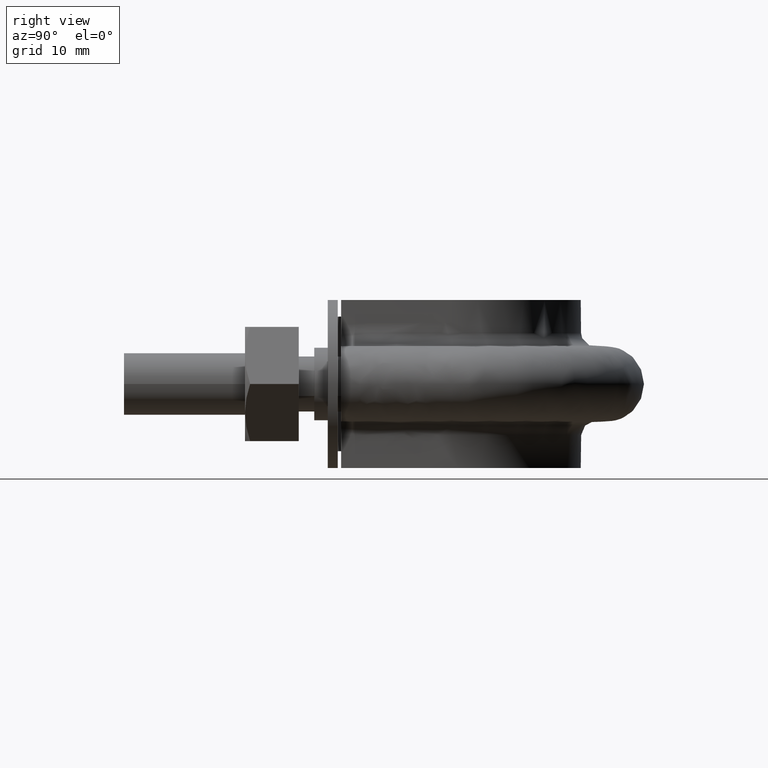
[diagram: clean part render]
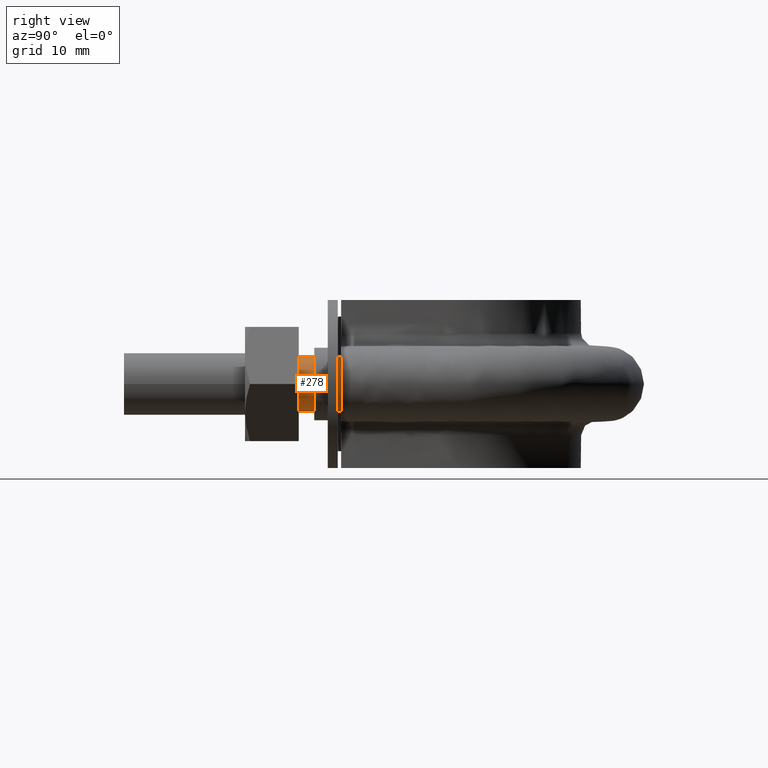
[diagram: same view with one face highlighted and labeled with its STEP entity id]
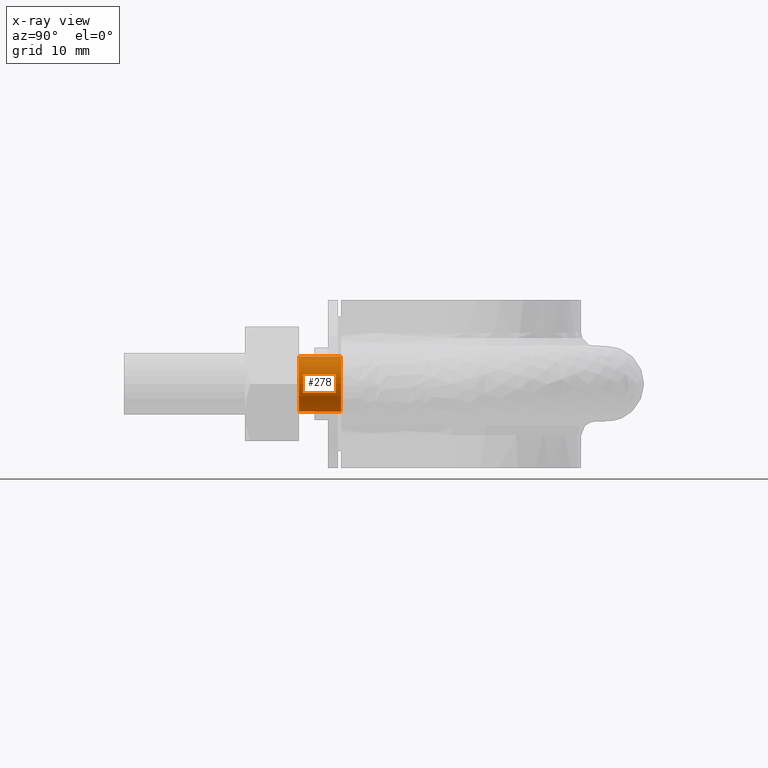
[diagram: x-ray of the same camera — body ghosted, the highlighted face saturated]
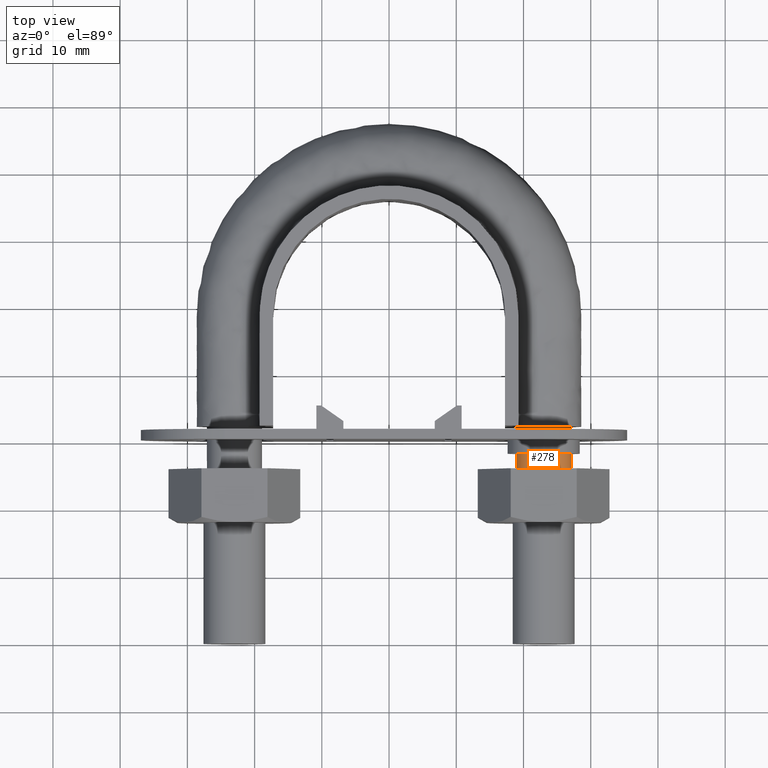
[diagram: same view with one face highlighted and labeled with its STEP entity id]
A machine part, right view. The second image highlights one B-rep face of the part: STEP entity #278.
The next image is the same camera in x-ray: the body ghosted, the highlighted face saturated — about 0% of this face is hidden behind the body in this view.
A second angle (top view) of the same face is appended — the face is thin or edge-on in the first view.
In plain terms, the highlighted cylindrical surface (bore or boss wall) has radius 4.1 mm, axis along (-0, -1, -0).
Its self-contained STEP definition (entity closure, byte-faithful):
#278 = ADVANCED_FACE( '', ( #406, #407 ), #408, .T. );
#406 = FACE_OUTER_BOUND( '', #1484, .T. );
#407 = FACE_OUTER_BOUND( '', #1485, .T. );
#408 = CYLINDRICAL_SURFACE( '', #1486, 4.10000000000000 );
#1484 = EDGE_LOOP( '', ( #1803 ) );
#1485 = EDGE_LOOP( '', ( #1804, #1805, #1806, #1807, #1808, #1809, #1810 ) );
#1486 = AXIS2_PLACEMENT_3D( '', #1811, #1812, #1813 );
#1803 = ORIENTED_EDGE( '', *, *, #2554, .T. );
#1804 = ORIENTED_EDGE( '', *, *, #2555, .T. );
#1805 = ORIENTED_EDGE( '', *, *, #2553, .T. );
#1806 = ORIENTED_EDGE( '', *, *, #2556, .T. );
#1807 = ORIENTED_EDGE( '', *, *, #2557, .T. );
#1808 = ORIENTED_EDGE( '', *, *, #2558, .T. );
#1809 = ORIENTED_EDGE( '', *, *, #2559, .T. );
#1810 = ORIENTED_EDGE( '', *, *, #2560, .T. );
#1811 = CARTESIAN_POINT( '', ( 23.0000000000000, 32.3000000000000, 9.99584936307515E-015 ) );
#1812 = DIRECTION( '', ( -2.44921270764475E-016, -1.00000000000000, -3.06151588455594E-016 ) );
#1813 = DIRECTION( '', ( 1.00000000000000, -2.44921270764475E-016, -3.74915180455534E-032 ) );
#2553 = EDGE_CURVE( '', #2795, #2793, #2812, .T. );
#2554 = EDGE_CURVE( '', #2813, #2813, #2814, .T. );
#2555 = EDGE_CURVE( '', #2797, #2795, #2815, .T. );
#2556 = EDGE_CURVE( '', #2793, #2792, #2816, .T. );
#2557 = EDGE_CURVE( '', #2792, #2803, #2817, .T. );
#2558 = EDGE_CURVE( '', #2803, #2801, #2818, .T. );
#2559 = EDGE_CURVE( '', #2801, #2799, #2819, .T. );
#2560 = EDGE_CURVE( '', #2799, #2797, #2820, .T. );
#2792 = VERTEX_POINT( '', #3331 );
#2793 = VERTEX_POINT( '', #3332 );
#2795 = VERTEX_POINT( '', #3337 );
#2797 = VERTEX_POINT( '', #3342 );
#2799 = VERTEX_POINT( '', #3347 );
#2801 = VERTEX_POINT( '', #3352 );
#2803 = VERTEX_POINT( '', #3357 );
#2812 = CIRCLE( '', #3390, 4.10000000000000 );
#2813 = VERTEX_POINT( '', #3391 );
#2814 = CIRCLE( '', #3392, 4.10000000000000 );
#2815 = CIRCLE( '', #3393, 4.10000000000000 );
#2816 = CIRCLE( '', #3394, 4.10000000000000 );
#2817 = CIRCLE( '', #3395, 4.10000000000000 );
#2818 = CIRCLE( '', #3396, 4.10000000000000 );
#2819 = CIRCLE( '', #3397, 4.10000000000000 );
#2820 = CIRCLE( '', #3398, 4.10000000000000 );
#3331 = CARTESIAN_POINT( '', ( 18.9000000000000, 32.3000000000000, -2.78022518195713E-013 ) );
#3332 = CARTESIAN_POINT( '', ( 20.4436918123791, 32.3000000000000, 3.20550907811884 ) );
#3337 = CARTESIAN_POINT( '', ( 23.9123358292209, 32.3000000000000, 3.99720443994548 ) );
#3342 = CARTESIAN_POINT( '', ( 26.6939723583999, 32.3000000000000, 1.77892333038209 ) );
#3347 = CARTESIAN_POINT( '', ( 26.6939723583999, 32.3000000000000, -1.77892333038200 ) );
#3352 = CARTESIAN_POINT( '', ( 23.9123358292213, 32.3000000000000, -3.99720443994538 ) );
#3357 = CARTESIAN_POINT( '', ( 20.4436918123816, 32.3000000000000, -3.20550907812084 ) );
#3390 = AXIS2_PLACEMENT_3D( '', #3973, #3974, #3975 );
#3391 = CARTESIAN_POINT( '', ( 23.0000000000000, 26.0000000000000, 4.10000000000001 ) );
#3392 = AXIS2_PLACEMENT_3D( '', #3976, #3977, #3978 );
#3393 = AXIS2_PLACEMENT_3D( '', #3979, #3980, #3981 );
#3394 = AXIS2_PLACEMENT_3D( '', #3982, #3983, #3984 );
#3395 = AXIS2_PLACEMENT_3D( '', #3985, #3986, #3987 );
#3396 = AXIS2_PLACEMENT_3D( '', #3988, #3989, #3990 );
#3397 = AXIS2_PLACEMENT_3D( '', #3991, #3992, #3993 );
#3398 = AXIS2_PLACEMENT_3D( '', #3994, #3995, #3996 );
#3973 = CARTESIAN_POINT( '', ( 23.0000000000000, 32.3000000000000, 9.99584936307515E-015 ) );
#3974 = DIRECTION( '', ( -2.44921270764475E-016, -1.00000000000000, -3.06151588455594E-016 ) );
#3975 = DIRECTION( '', ( 1.00000000000000, -2.44921270764475E-016, -4.04273868632169E-032 ) );
#3976 = CARTESIAN_POINT( '', ( 23.0000000000000, 26.0000000000000, 8.06709435580491E-015 ) );
#3977 = DIRECTION( '', ( 2.44921270764475E-016, 1.00000000000000, 3.06151588455594E-016 ) );
#3978 = DIRECTION( '', ( -3.74915180455534E-032, -3.06151588455594E-016, 1.00000000000000 ) );
#3979 = CARTESIAN_POINT( '', ( 23.0000000000000, 32.3000000000000, 9.99584936307515E-015 ) );
#3980 = DIRECTION( '', ( -2.44921270764475E-016, -1.00000000000000, -3.06151588455594E-016 ) );
#3981 = DIRECTION( '', ( 1.00000000000000, -2.44921270764475E-016, -4.04273868632169E-032 ) );
#3982 = CARTESIAN_POINT( '', ( 23.0000000000000, 32.3000000000000, 9.99584936307515E-015 ) );
#3983 = DIRECTION( '', ( -2.44921270764475E-016, -1.00000000000000, -3.06151588455594E-016 ) );
#3984 = DIRECTION( '', ( 1.00000000000000, -2.44921270764475E-016, -4.04273868632169E-032 ) );
#3985 = CARTESIAN_POINT( '', ( 23.0000000000000, 32.3000000000000, 9.99584936307515E-015 ) );
#3986 = DIRECTION( '', ( -2.44921270764475E-016, -1.00000000000000, -3.06151588455594E-016 ) );
#3987 = DIRECTION( '', ( 1.00000000000000, -2.44921270764475E-016, -4.04273868632169E-032 ) );
#3988 = CARTESIAN_POINT( '', ( 23.0000000000000, 32.3000000000000, 9.99584936307515E-015 ) );
#3989 = DIRECTION( '', ( -2.44921270764475E-016, -1.00000000000000, -3.06151588455594E-016 ) );
#3990 = DIRECTION( '', ( 1.00000000000000, -2.44921270764475E-016, -4.04273868632169E-032 ) );
#3991 = CARTESIAN_POINT( '', ( 23.0000000000000, 32.3000000000000, 9.99584936307515E-015 ) );
#3992 = DIRECTION( '', ( -2.44921270764475E-016, -1.00000000000000, -3.06151588455594E-016 ) );
#3993 = DIRECTION( '', ( 1.00000000000000, -2.44921270764475E-016, -4.04273868632169E-032 ) );
#3994 = CARTESIAN_POINT( '', ( 23.0000000000000, 32.3000000000000, 9.99584936307515E-015 ) );
#3995 = DIRECTION( '', ( -2.44921270764475E-016, -1.00000000000000, -3.06151588455594E-016 ) );
#3996 = DIRECTION( '', ( 1.00000000000000, -2.44921270764475E-016, -4.04273868632169E-032 ) );